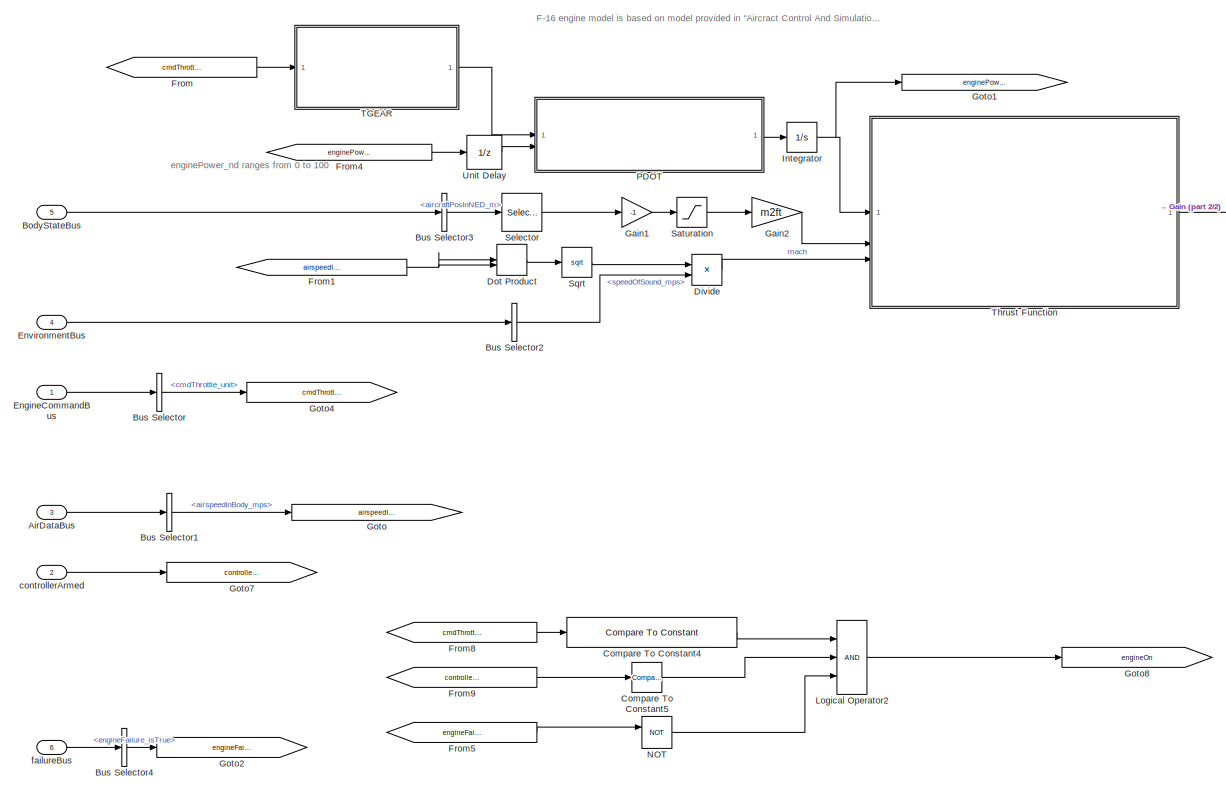
[diagram: root canvas - part 1/2, left side, full height]
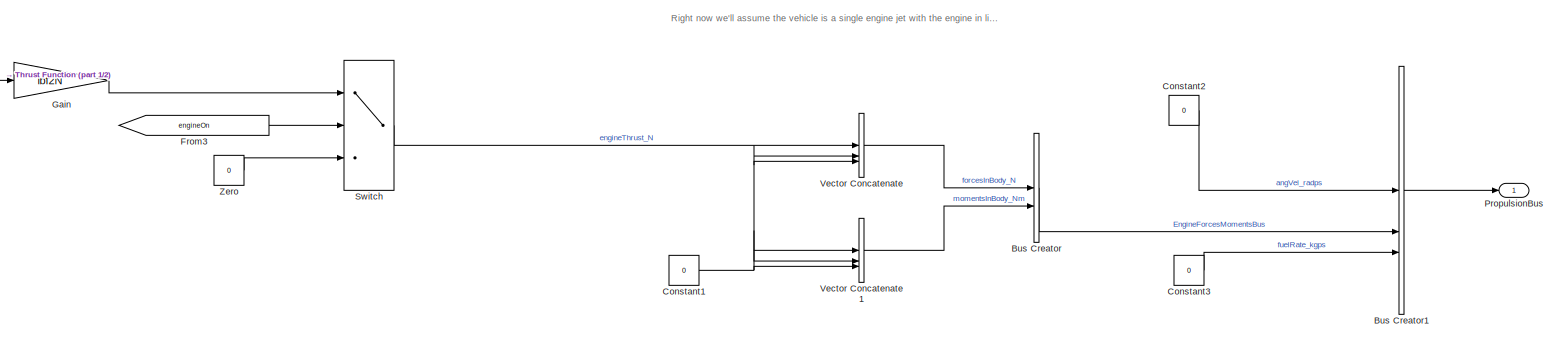
[diagram: root canvas - part 2/2, middle right region]
MODEL slx_affd410aeec6
KIND model
CONFIG AbsTol = auto
CONFIG EnableMultiTasking = off
CONFIG FixedStep = auto
CONFIG MaxStep = auto
CONFIG MinStep = auto
CONFIG RelTol = 1e-3
CONFIG SampleTimeConstraint = Unconstrained
CONFIG SolverName = VariableStepAuto
CONFIG StartTime = 0.0
CONFIG StopTime = 10.0
BLOCK [Inport] AirDataBus
  OutDataTypeStr = Bus: AirDataBus
  Port = 3
BLOCK [Inport] BodyStateBus
  OutDataTypeStr = Bus: BodyStateBus
  Port = 5
BLOCK [BusCreator] Bus Creator
  DisplayOption = bar
  InheritFromInputs = on
  Inputs = 2
  OutDataTypeStr = Bus: ComponentForcesMomentsBus
BLOCK [BusCreator] Bus Creator1
  DisplayOption = bar
  InheritFromInputs = on
  Inputs = 3
  OutDataTypeStr = Bus: PropulsionBus
BLOCK [BusSelector] Bus Selector
  OutputSignals = cmdThrottle_unit
BLOCK [BusSelector] Bus Selector1
  OutputSignals = airspeedInBody_mps
BLOCK [BusSelector] Bus Selector2
  OutputSignals = AirEnvironment.speedOfSound_mps
BLOCK [BusSelector] Bus Selector3
  OutputSignals = aircraftPosInNED_m
BLOCK [BusSelector] Bus Selector4
  OutputSignals = engineFailure_isTrue
BLOCK [Reference] Compare To Constant4  REF=simulink/Logic and Bit
Operations/Compare
To Constant
  SourceBlock = simulink/Logic and Bit\nOperations/Compare\nTo Constant
  SourceType = Compare To Constant
BLOCK [Reference] Compare To Constant5  REF=simulink/Logic and Bit
Operations/Compare
To Constant
  SourceBlock = simulink/Logic and Bit\nOperations/Compare\nTo Constant
  SourceType = Compare To Constant
BLOCK [Constant] Constant1
  SampleTime = stepSize_s
  Value = 0
BLOCK [Constant] Constant2
  SampleTime = stepSize_s
  Value = 0
BLOCK [Constant] Constant3
  SampleTime = stepSize_s
  Value = 0
BLOCK [Product] Divide
  Inputs = */
BLOCK [DotProduct] Dot Product
  OutDataTypeStr = Inherit: Inherit via internal rule
BLOCK [Inport] EngineCommandBus
  OutDataTypeStr = Bus: EngineCommandBus
BLOCK [Inport] EnvironmentBus
  OutDataTypeStr = Bus: EnvironmentBus
  Port = 4
BLOCK [From] From
  GotoTag = cmdThrottle_nd
BLOCK [From] From1
  GotoTag = airspeedInBody_mps
BLOCK [From] From3
  GotoTag = engineOn
BLOCK [From] From4
  GotoTag = enginePower_nd
BLOCK [From] From5
  GotoTag = engineFailure_isTrue
BLOCK [From] From8
  GotoTag = cmdThrottle_nd
BLOCK [From] From9
  GotoTag = controllerArmed
BLOCK [Gain] Gain
  Gain = lbf2N
BLOCK [Gain] Gain1
  Gain = -1
BLOCK [Gain] Gain2
  Gain = m2ft
BLOCK [Goto] Goto
  GotoTag = airspeedInBody_mps
BLOCK [Goto] Goto1
  GotoTag = enginePower_nd
BLOCK [Goto] Goto2
  GotoTag = engineFailure_isTrue
BLOCK [Goto] Goto4
  GotoTag = cmdThrottle_nd
BLOCK [Goto] Goto7
  GotoTag = controllerArmed
BLOCK [Goto] Goto8
  GotoTag = engineOn
BLOCK [Integrator] Integrator
BLOCK [Logic] Logical Operator2
  AllPortsSameDT = off
  Inputs = 3
  OutDataTypeStr = boolean
BLOCK [Logic] NOT
  AllPortsSameDT = off
  IconShape = distinctive
  Operator = NOT
  OutDataTypeStr = boolean
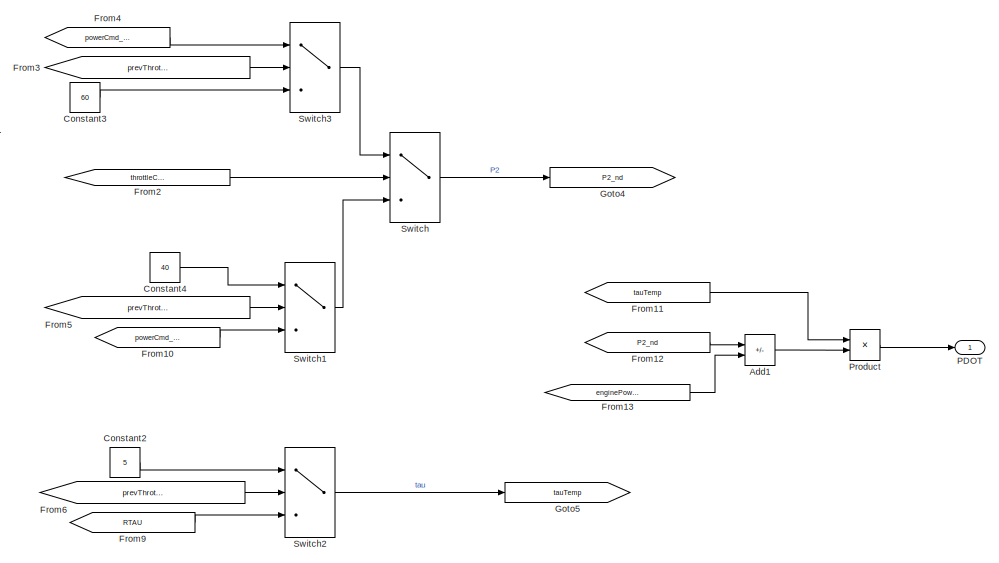
[diagram: PDOT - part 1/2, right side, full height]
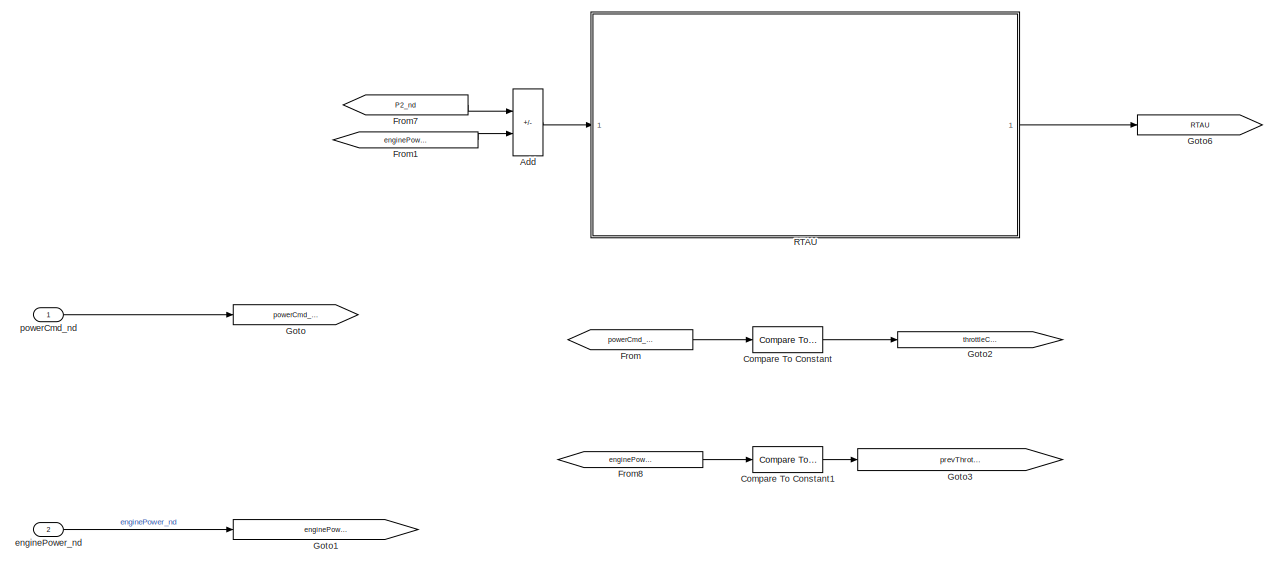
[diagram: PDOT - part 2/2, left side, full height]
BLOCK [SubSystem] PDOT
BLOCK [Sum] PDOT/Add
  IconShape = rectangular
  Inputs = +-
BLOCK [Sum] PDOT/Add1
  IconShape = rectangular
  Inputs = +-
BLOCK [Reference] PDOT/Compare To Constant  REF=simulink/Logic and Bit
Operations/Compare
To Constant
  SourceBlock = simulink/Logic and Bit\nOperations/Compare\nTo Constant
  SourceType = Compare To Constant
BLOCK [Reference] PDOT/Compare To Constant1  REF=simulink/Logic and Bit
Operations/Compare
To Constant
  SourceBlock = simulink/Logic and Bit\nOperations/Compare\nTo Constant
  SourceType = Compare To Constant
BLOCK [Constant] PDOT/Constant2
  Value = 5
BLOCK [Constant] PDOT/Constant3
  Value = 60
BLOCK [Constant] PDOT/Constant4
  Value = 40
BLOCK [From] PDOT/From
  GotoTag = powerCmd_nd
BLOCK [From] PDOT/From1
  GotoTag = enginePower_nd
BLOCK [From] PDOT/From10
  GotoTag = powerCmd_nd
BLOCK [From] PDOT/From11
  GotoTag = tauTemp
BLOCK [From] PDOT/From12
  GotoTag = P2_nd
BLOCK [From] PDOT/From13
  GotoTag = enginePower_nd
BLOCK [From] PDOT/From2
  GotoTag = throttleCmdGEFifty_isTrue
BLOCK [From] PDOT/From3
  GotoTag = prevThrottleCmdGEFifty_isTrue
BLOCK [From] PDOT/From4
  GotoTag = powerCmd_nd
BLOCK [From] PDOT/From5
  GotoTag = prevThrottleCmdGEFifty_isTrue
BLOCK [From] PDOT/From6
  GotoTag = prevThrottleCmdGEFifty_isTrue
BLOCK [From] PDOT/From7
  GotoTag = P2_nd
BLOCK [From] PDOT/From8
  GotoTag = enginePower_nd
BLOCK [From] PDOT/From9
  GotoTag = RTAU
BLOCK [Goto] PDOT/Goto
  GotoTag = powerCmd_nd
BLOCK [Goto] PDOT/Goto1
  GotoTag = enginePower_nd
BLOCK [Goto] PDOT/Goto2
  GotoTag = throttleCmdGEFifty_isTrue
BLOCK [Goto] PDOT/Goto3
  GotoTag = prevThrottleCmdGEFifty_isTrue
BLOCK [Goto] PDOT/Goto4
  GotoTag = P2_nd
BLOCK [Goto] PDOT/Goto5
  GotoTag = tauTemp
BLOCK [Goto] PDOT/Goto6
  GotoTag = RTAU
BLOCK [Outport] PDOT/PDOT
BLOCK [Product] PDOT/Product
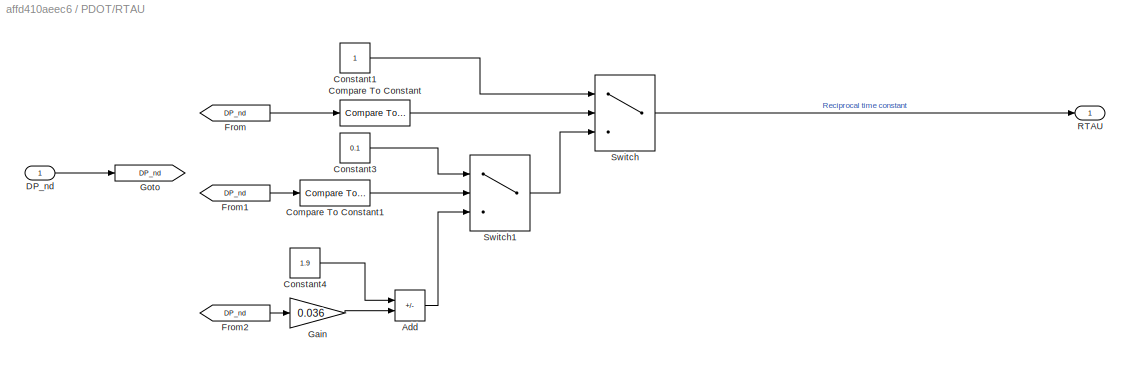
BLOCK [SubSystem] PDOT/RTAU
BLOCK [Sum] PDOT/RTAU/Add
  IconShape = rectangular
  Inputs = +-
BLOCK [Reference] PDOT/RTAU/Compare To Constant  REF=simulink/Logic and Bit
Operations/Compare
To Constant
  SourceBlock = simulink/Logic and Bit\nOperations/Compare\nTo Constant
  SourceType = Compare To Constant
BLOCK [Reference] PDOT/RTAU/Compare To Constant1  REF=simulink/Logic and Bit
Operations/Compare
To Constant
  SourceBlock = simulink/Logic and Bit\nOperations/Compare\nTo Constant
  SourceType = Compare To Constant
BLOCK [Constant] PDOT/RTAU/Constant1
BLOCK [Constant] PDOT/RTAU/Constant3
  Value = 0.1
BLOCK [Constant] PDOT/RTAU/Constant4
  Value = 1.9
BLOCK [Inport] PDOT/RTAU/DP_nd
BLOCK [From] PDOT/RTAU/From
  GotoTag = DP_nd
BLOCK [From] PDOT/RTAU/From1
  GotoTag = DP_nd
BLOCK [From] PDOT/RTAU/From2
  GotoTag = DP_nd
BLOCK [Gain] PDOT/RTAU/Gain
  Gain = 0.036
BLOCK [Goto] PDOT/RTAU/Goto
  GotoTag = DP_nd
BLOCK [Outport] PDOT/RTAU/RTAU
BLOCK [Switch] PDOT/RTAU/Switch
  Criteria = u2 > Threshold
  InputSameDT = off
  SaturateOnIntegerOverflow = off
BLOCK [Switch] PDOT/RTAU/Switch1
  Criteria = u2 > Threshold
  InputSameDT = off
  SaturateOnIntegerOverflow = off
BLOCK [Switch] PDOT/Switch
  Criteria = u2 > Threshold
  InputSameDT = off
  SaturateOnIntegerOverflow = off
BLOCK [Switch] PDOT/Switch1
  Criteria = u2 > Threshold
  InputSameDT = off
  SaturateOnIntegerOverflow = off
BLOCK [Switch] PDOT/Switch2
  Criteria = u2 > Threshold
  InputSameDT = off
  SaturateOnIntegerOverflow = off
BLOCK [Switch] PDOT/Switch3
  Criteria = u2 > Threshold
  InputSameDT = off
  SaturateOnIntegerOverflow = off
BLOCK [Inport] PDOT/enginePower_nd
  Port = 2
BLOCK [Inport] PDOT/powerCmd_nd
BLOCK [Outport] PropulsionBus
  OutDataTypeStr = Bus: PropulsionBus
BLOCK [Saturate] Saturation
  LowerLimit = -1000
  UpperLimit = 850000
BLOCK [Selector] Selector
  IndexOptions = Index vector (dialog)
  Indices = 3
  InputPortWidth = 3
  OutputSizes = 1
BLOCK [Sqrt] Sqrt
BLOCK [Switch] Switch
  Criteria = u2 > Threshold
  InputSameDT = off
  SaturateOnIntegerOverflow = off
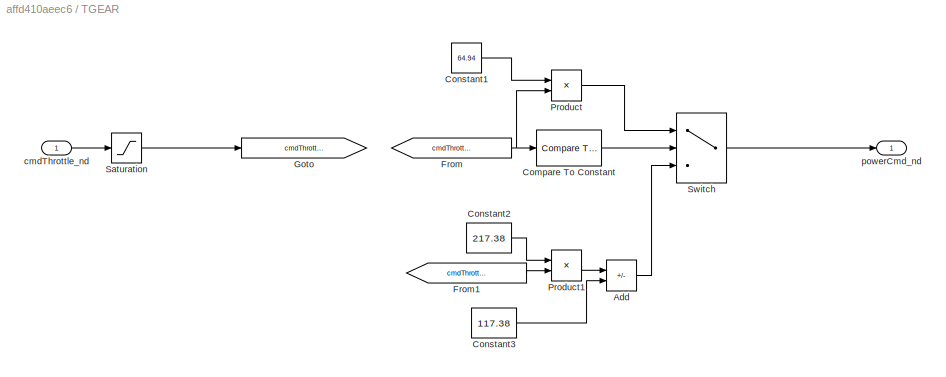
BLOCK [SubSystem] TGEAR
BLOCK [Sum] TGEAR/Add
  IconShape = rectangular
  Inputs = +-
BLOCK [Reference] TGEAR/Compare To Constant  REF=simulink/Logic and Bit
Operations/Compare
To Constant
  SourceBlock = simulink/Logic and Bit\nOperations/Compare\nTo Constant
  SourceType = Compare To Constant
BLOCK [Constant] TGEAR/Constant1
  Value = 64.94
BLOCK [Constant] TGEAR/Constant2
  Value = 217.38
BLOCK [Constant] TGEAR/Constant3
  Value = 117.38
BLOCK [From] TGEAR/From
  GotoTag = cmdThrottle_nd
BLOCK [From] TGEAR/From1
  GotoTag = cmdThrottle_nd
BLOCK [Goto] TGEAR/Goto
  GotoTag = cmdThrottle_nd
BLOCK [Product] TGEAR/Product
BLOCK [Product] TGEAR/Product1
BLOCK [Saturate] TGEAR/Saturation
  LowerLimit = 0
  UpperLimit = 1
BLOCK [Switch] TGEAR/Switch
  Criteria = u2 > Threshold
  InputSameDT = off
  SaturateOnIntegerOverflow = off
BLOCK [Inport] TGEAR/cmdThrottle_nd
BLOCK [Outport] TGEAR/powerCmd_nd
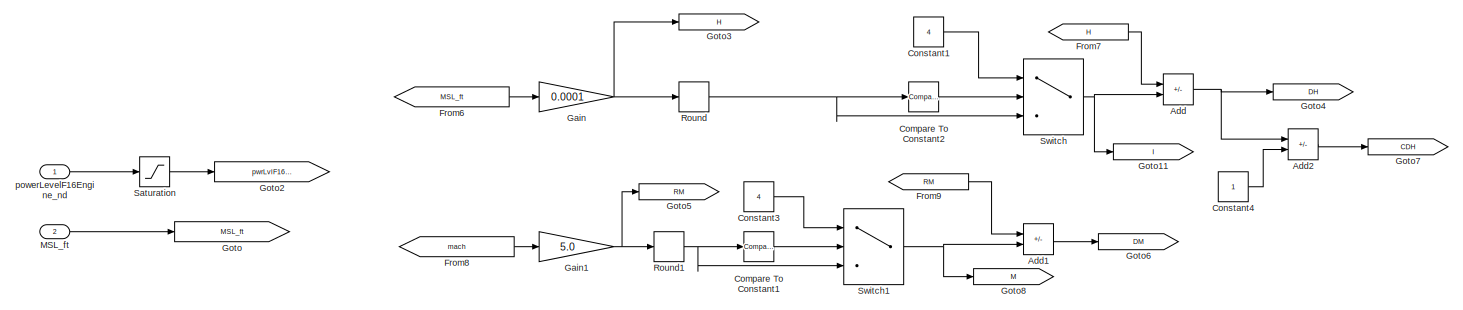
[diagram: Thrust Function - part 1/5, top left region]
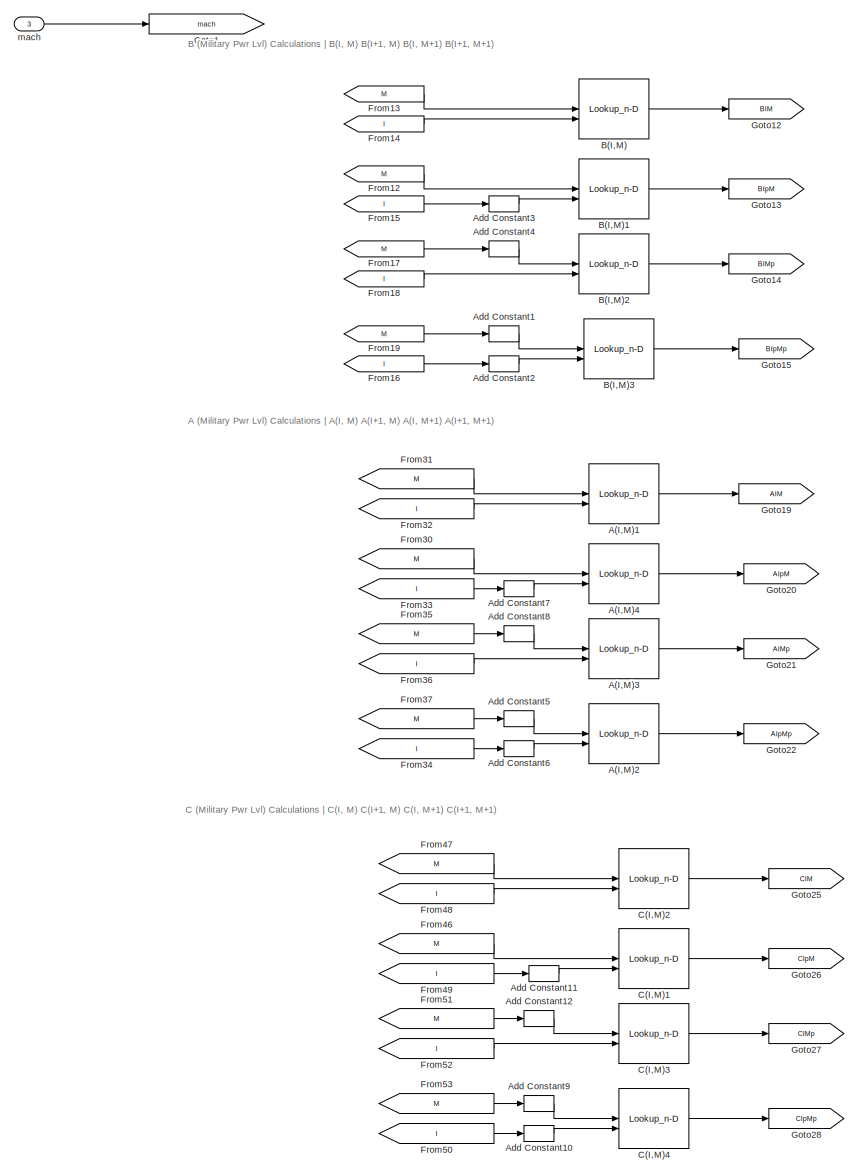
[diagram: Thrust Function - part 2/5, middle left region]
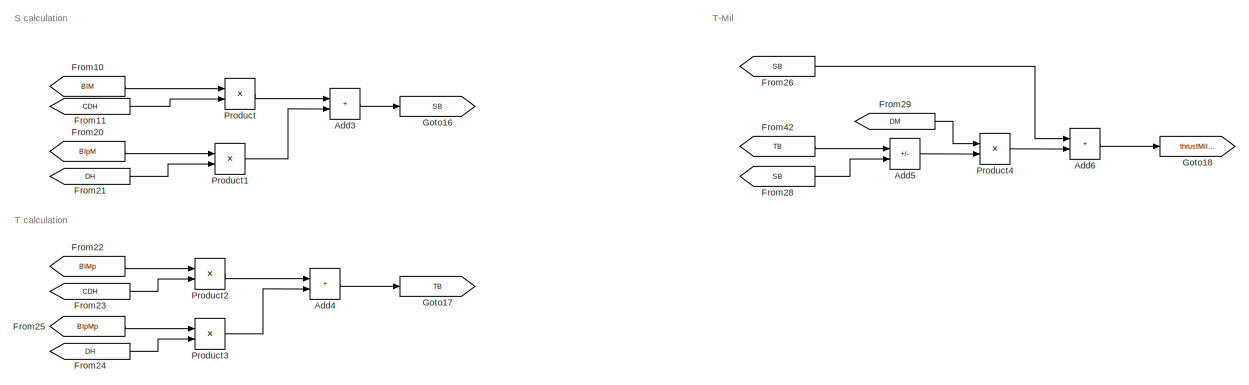
[diagram: Thrust Function - part 3/5, top center region]
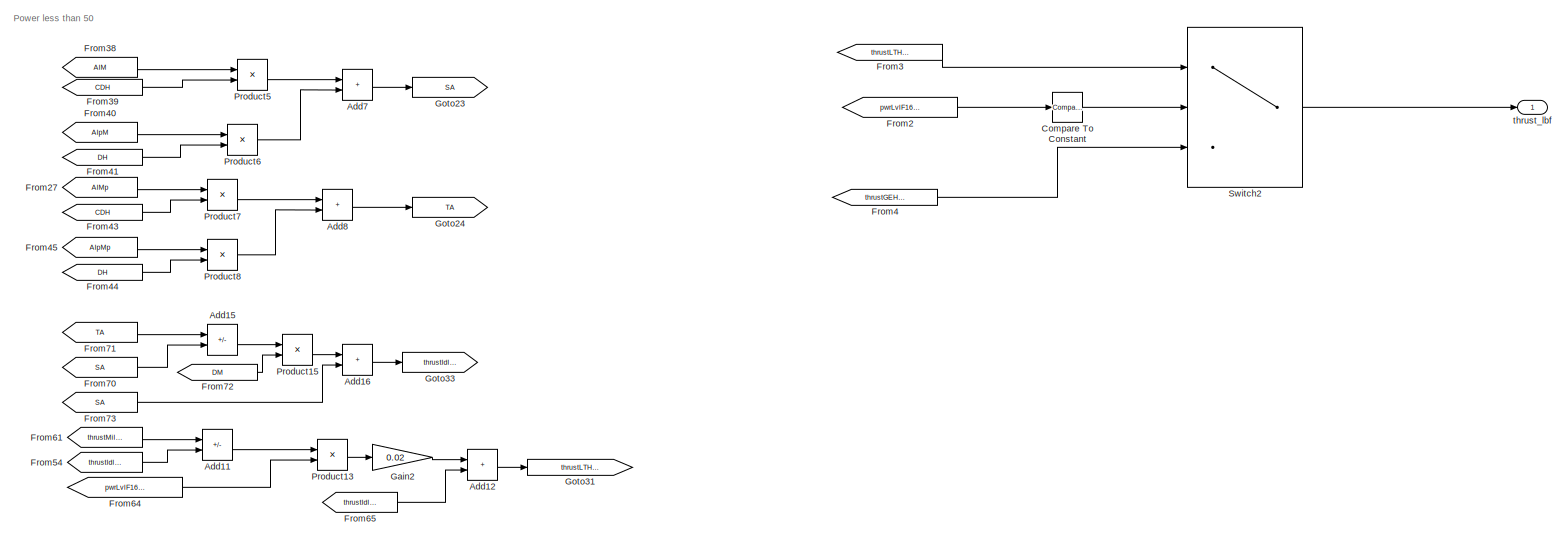
[diagram: Thrust Function - part 4/5, middle right region]
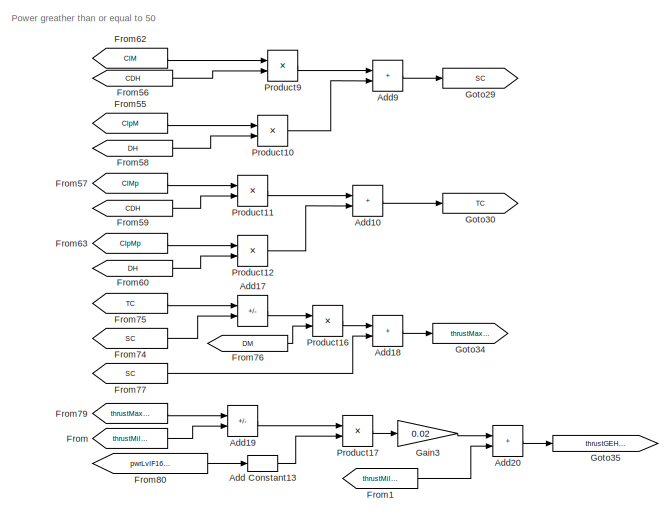
[diagram: Thrust Function - part 5/5, bottom center region]
BLOCK [SubSystem] Thrust Function
BLOCK [Lookup_n-D] Thrust Function/A(I,M)1
  BreakpointsForDimension1 = engineDataF16.machBkpts
  BreakpointsForDimension2 = engineDataF16.altitudeBkpts_ft
  DiagnosticForOutOfRangeInput = Warning
  ExtrapMethod = Clip
  InputPortMap = u0,u1
  InternalRulePriority = Speed
  RndMeth = Simplest
  Table = engineDataF16.thrustIdle_lbf
BLOCK [Lookup_n-D] Thrust Function/A(I,M)2
  BreakpointsForDimension1 = engineDataF16.machBkpts
  BreakpointsForDimension2 = engineDataF16.altitudeBkpts_ft
  DiagnosticForOutOfRangeInput = Warning
  ExtrapMethod = Clip
  InputPortMap = u0,u1
  InternalRulePriority = Speed
  RndMeth = Simplest
  Table = engineDataF16.thrustIdle_lbf
BLOCK [Lookup_n-D] Thrust Function/A(I,M)3
  BreakpointsForDimension1 = engineDataF16.machBkpts
  BreakpointsForDimension2 = engineDataF16.altitudeBkpts_ft
  DiagnosticForOutOfRangeInput = Warning
  ExtrapMethod = Clip
  InputPortMap = u0,u1
  InternalRulePriority = Speed
  RndMeth = Simplest
  Table = engineDataF16.thrustIdle_lbf
BLOCK [Lookup_n-D] Thrust Function/A(I,M)4
  BreakpointsForDimension1 = engineDataF16.machBkpts
  BreakpointsForDimension2 = engineDataF16.altitudeBkpts_ft
  DiagnosticForOutOfRangeInput = Warning
  ExtrapMethod = Clip
  InputPortMap = u0,u1
  InternalRulePriority = Speed
  RndMeth = Simplest
  Table = engineDataF16.thrustIdle_lbf
BLOCK [Sum] Thrust Function/Add
  IconShape = rectangular
  Inputs = +-
BLOCK [Bias] Thrust Function/Add Constant1
  Bias = 1
  SaturateOnIntegerOverflow = off
BLOCK [Bias] Thrust Function/Add Constant10
  Bias = 1
  SaturateOnIntegerOverflow = off
BLOCK [Bias] Thrust Function/Add Constant11
  Bias = 1
  SaturateOnIntegerOverflow = off
BLOCK [Bias] Thrust Function/Add Constant12
  Bias = 1
  SaturateOnIntegerOverflow = off
BLOCK [Bias] Thrust Function/Add Constant13
  Bias = -50
  SaturateOnIntegerOverflow = off
BLOCK [Bias] Thrust Function/Add Constant2
  Bias = 1
  SaturateOnIntegerOverflow = off
BLOCK [Bias] Thrust Function/Add Constant3
  Bias = 1
  SaturateOnIntegerOverflow = off
BLOCK [Bias] Thrust Function/Add Constant4
  Bias = 1
  SaturateOnIntegerOverflow = off
BLOCK [Bias] Thrust Function/Add Constant5
  Bias = 1
  SaturateOnIntegerOverflow = off
BLOCK [Bias] Thrust Function/Add Constant6
  Bias = 1
  SaturateOnIntegerOverflow = off
BLOCK [Bias] Thrust Function/Add Constant7
  Bias = 1
  SaturateOnIntegerOverflow = off
BLOCK [Bias] Thrust Function/Add Constant8
  Bias = 1
  SaturateOnIntegerOverflow = off
BLOCK [Bias] Thrust Function/Add Constant9
  Bias = 1
  SaturateOnIntegerOverflow = off
BLOCK [Sum] Thrust Function/Add1
  IconShape = rectangular
  Inputs = +-
BLOCK [Sum] Thrust Function/Add10
  IconShape = rectangular
BLOCK [Sum] Thrust Function/Add11
  IconShape = rectangular
  Inputs = +-
BLOCK [Sum] Thrust Function/Add12
  IconShape = rectangular
BLOCK [Sum] Thrust Function/Add15
  IconShape = rectangular
  Inputs = +-
BLOCK [Sum] Thrust Function/Add16
  IconShape = rectangular
BLOCK [Sum] Thrust Function/Add17
  IconShape = rectangular
  Inputs = +-
BLOCK [Sum] Thrust Function/Add18
  IconShape = rectangular
BLOCK [Sum] Thrust Function/Add19
  IconShape = rectangular
  Inputs = +-
BLOCK [Sum] Thrust Function/Add2
  IconShape = rectangular
  Inputs = -+
BLOCK [Sum] Thrust Function/Add20
  IconShape = rectangular
BLOCK [Sum] Thrust Function/Add3
  IconShape = rectangular
BLOCK [Sum] Thrust Function/Add4
  IconShape = rectangular
BLOCK [Sum] Thrust Function/Add5
  IconShape = rectangular
  Inputs = +-
BLOCK [Sum] Thrust Function/Add6
  IconShape = rectangular
BLOCK [Sum] Thrust Function/Add7
  IconShape = rectangular
BLOCK [Sum] Thrust Function/Add8
  IconShape = rectangular
BLOCK [Sum] Thrust Function/Add9
  IconShape = rectangular
BLOCK [Lookup_n-D] Thrust Function/B(I,M)
  BreakpointsForDimension1 = engineDataF16.machBkpts
  BreakpointsForDimension2 = engineDataF16.altitudeBkpts_ft
  DiagnosticForOutOfRangeInput = Warning
  ExtrapMethod = Clip
  InputPortMap = u0,u1
  InternalRulePriority = Speed
  RndMeth = Simplest
  Table = engineDataF16.thrustMilitary_lbf
BLOCK [Lookup_n-D] Thrust Function/B(I,M)1
  BreakpointsForDimension1 = engineDataF16.machBkpts
  BreakpointsForDimension2 = engineDataF16.altitudeBkpts_ft
  DiagnosticForOutOfRangeInput = Warning
  ExtrapMethod = Clip
  InputPortMap = u0,u1
  InternalRulePriority = Speed
  RndMeth = Simplest
  Table = engineDataF16.thrustMilitary_lbf
BLOCK [Lookup_n-D] Thrust Function/B(I,M)2
  BreakpointsForDimension1 = engineDataF16.machBkpts
  BreakpointsForDimension2 = engineDataF16.altitudeBkpts_ft
  DiagnosticForOutOfRangeInput = Warning
  ExtrapMethod = Clip
  InputPortMap = u0,u1
  InternalRulePriority = Speed
  RndMeth = Simplest
  Table = engineDataF16.thrustMilitary_lbf
BLOCK [Lookup_n-D] Thrust Function/B(I,M)3
  BreakpointsForDimension1 = engineDataF16.machBkpts
  BreakpointsForDimension2 = engineDataF16.altitudeBkpts_ft
  DiagnosticForOutOfRangeInput = Warning
  ExtrapMethod = Clip
  InputPortMap = u0,u1
  InternalRulePriority = Speed
  RndMeth = Simplest
  Table = engineDataF16.thrustMilitary_lbf
BLOCK [Lookup_n-D] Thrust Function/C(I,M)1
  BreakpointsForDimension1 = engineDataF16.machBkpts
  BreakpointsForDimension2 = engineDataF16.altitudeBkpts_ft
  DiagnosticForOutOfRangeInput = Warning
  ExtrapMethod = Clip
  InputPortMap = u0,u1
  InternalRulePriority = Speed
  RndMeth = Simplest
  Table = engineDataF16.thrustMax_lbf
BLOCK [Lookup_n-D] Thrust Function/C(I,M)2
  BreakpointsForDimension1 = engineDataF16.machBkpts
  BreakpointsForDimension2 = engineDataF16.altitudeBkpts_ft
  DiagnosticForOutOfRangeInput = Warning
  ExtrapMethod = Clip
  InputPortMap = u0,u1
  InternalRulePriority = Speed
  RndMeth = Simplest
  Table = engineDataF16.thrustMax_lbf
BLOCK [Lookup_n-D] Thrust Function/C(I,M)3
  BreakpointsForDimension1 = engineDataF16.machBkpts
  BreakpointsForDimension2 = engineDataF16.altitudeBkpts_ft
  DiagnosticForOutOfRangeInput = Warning
  ExtrapMethod = Clip
  InputPortMap = u0,u1
  InternalRulePriority = Speed
  RndMeth = Simplest
  Table = engineDataF16.thrustMax_lbf
BLOCK [Lookup_n-D] Thrust Function/C(I,M)4
  BreakpointsForDimension1 = engineDataF16.machBkpts
  BreakpointsForDimension2 = engineDataF16.altitudeBkpts_ft
  DiagnosticForOutOfRangeInput = Warning
  ExtrapMethod = Clip
  InputPortMap = u0,u1
  InternalRulePriority = Speed
  RndMeth = Simplest
  Table = engineDataF16.thrustMax_lbf
BLOCK [Reference] Thrust Function/Compare To Constant  REF=simulink/Logic and Bit
Operations/Compare
To Constant
  SourceBlock = simulink/Logic and Bit\nOperations/Compare\nTo Constant
  SourceType = Compare To Constant
BLOCK [Reference] Thrust Function/Compare To Constant1  REF=simulink/Logic and Bit
Operations/Compare
To Constant
  SourceBlock = simulink/Logic and Bit\nOperations/Compare\nTo Constant
  SourceType = Compare To Constant
BLOCK [Reference] Thrust Function/Compare To Constant2  REF=simulink/Logic and Bit
Operations/Compare
To Constant
  SourceBlock = simulink/Logic and Bit\nOperations/Compare\nTo Constant
  SourceType = Compare To Constant
BLOCK [Constant] Thrust Function/Constant1
  Value = 4
BLOCK [Constant] Thrust Function/Constant3
  Value = 4
BLOCK [Constant] Thrust Function/Constant4
BLOCK [From] Thrust Function/From
  GotoTag = thrustMil_lbf
BLOCK [From] Thrust Function/From1
  GotoTag = thrustMil_lbf
BLOCK [From] Thrust Function/From10
  GotoTag = BIM
BLOCK [From] Thrust Function/From11
  GotoTag = CDH
BLOCK [From] Thrust Function/From12
  GotoTag = M
BLOCK [From] Thrust Function/From13
  GotoTag = M
BLOCK [From] Thrust Function/From14
  GotoTag = I
BLOCK [From] Thrust Function/From15
  GotoTag = I
BLOCK [From] Thrust Function/From16
  GotoTag = I
BLOCK [From] Thrust Function/From17
  GotoTag = M
BLOCK [From] Thrust Function/From18
  GotoTag = I
BLOCK [From] Thrust Function/From19
  GotoTag = M
BLOCK [From] Thrust Function/From2
  GotoTag = pwrLvlF16Eng_nd
BLOCK [From] Thrust Function/From20
  GotoTag = BIpM
BLOCK [From] Thrust Function/From21
  GotoTag = DH
BLOCK [From] Thrust Function/From22
  GotoTag = BIMp
BLOCK [From] Thrust Function/From23
  GotoTag = CDH
BLOCK [From] Thrust Function/From24
  GotoTag = DH
BLOCK [From] Thrust Function/From25
  GotoTag = BIpMp
BLOCK [From] Thrust Function/From26
  GotoTag = SB
BLOCK [From] Thrust Function/From27
  GotoTag = AIMp
BLOCK [From] Thrust Function/From28
  GotoTag = SB
BLOCK [From] Thrust Function/From29
  GotoTag = DM
BLOCK [From] Thrust Function/From3
  GotoTag = thrustLTHalf_lbf
BLOCK [From] Thrust Function/From30
  GotoTag = M
BLOCK [From] Thrust Function/From31
  GotoTag = M
BLOCK [From] Thrust Function/From32
  GotoTag = I
BLOCK [From] Thrust Function/From33
  GotoTag = I
BLOCK [From] Thrust Function/From34
  GotoTag = I
BLOCK [From] Thrust Function/From35
  GotoTag = M
BLOCK [From] Thrust Function/From36
  GotoTag = I
BLOCK [From] Thrust Function/From37
  GotoTag = M
BLOCK [From] Thrust Function/From38
  GotoTag = AIM
BLOCK [From] Thrust Function/From39
  GotoTag = CDH
BLOCK [From] Thrust Function/From4
  GotoTag = thrustGEHalf_lbf
BLOCK [From] Thrust Function/From40
  GotoTag = AIpM
BLOCK [From] Thrust Function/From41
  GotoTag = DH
BLOCK [From] Thrust Function/From42
  GotoTag = TB
BLOCK [From] Thrust Function/From43
  GotoTag = CDH
BLOCK [From] Thrust Function/From44
  GotoTag = DH
BLOCK [From] Thrust Function/From45
  GotoTag = AIpMp
BLOCK [From] Thrust Function/From46
  GotoTag = M
BLOCK [From] Thrust Function/From47
  GotoTag = M
BLOCK [From] Thrust Function/From48
  GotoTag = I
BLOCK [From] Thrust Function/From49
  GotoTag = I
BLOCK [From] Thrust Function/From50
  GotoTag = I
BLOCK [From] Thrust Function/From51
  GotoTag = M
BLOCK [From] Thrust Function/From52
  GotoTag = I
BLOCK [From] Thrust Function/From53
  GotoTag = M
BLOCK [From] Thrust Function/From54
  GotoTag = thrustIdle_lbf
BLOCK [From] Thrust Function/From55
  GotoTag = CIpM
BLOCK [From] Thrust Function/From56
  GotoTag = CDH
BLOCK [From] Thrust Function/From57
  GotoTag = CIMp
BLOCK [From] Thrust Function/From58
  GotoTag = DH
BLOCK [From] Thrust Function/From59
  GotoTag = CDH
BLOCK [From] Thrust Function/From6
  GotoTag = MSL_ft
BLOCK [From] Thrust Function/From60
  GotoTag = DH
BLOCK [From] Thrust Function/From61
  GotoTag = thrustMil_lbf
BLOCK [From] Thrust Function/From62
  GotoTag = CIM
BLOCK [From] Thrust Function/From63
  GotoTag = CIpMp
BLOCK [From] Thrust Function/From64
  GotoTag = pwrLvlF16Eng_nd
BLOCK [From] Thrust Function/From65
  GotoTag = thrustIdle_lbf
BLOCK [From] Thrust Function/From7
  GotoTag = H
BLOCK [From] Thrust Function/From70
  GotoTag = SA
BLOCK [From] Thrust Function/From71
  GotoTag = TA
BLOCK [From] Thrust Function/From72
  GotoTag = DM
BLOCK [From] Thrust Function/From73
  GotoTag = SA
BLOCK [From] Thrust Function/From74
  GotoTag = SC
BLOCK [From] Thrust Function/From75
  GotoTag = TC
BLOCK [From] Thrust Function/From76
  GotoTag = DM
BLOCK [From] Thrust Function/From77
  GotoTag = SC
BLOCK [From] Thrust Function/From79
  GotoTag = thrustMax_lbf
BLOCK [From] Thrust Function/From8
  GotoTag = mach
BLOCK [From] Thrust Function/From80
  GotoTag = pwrLvlF16Eng_nd
BLOCK [From] Thrust Function/From9
  GotoTag = RM
BLOCK [Gain] Thrust Function/Gain
  Gain = 0.0001
BLOCK [Gain] Thrust Function/Gain1
  Gain = 5.0
BLOCK [Gain] Thrust Function/Gain2
  Gain = 0.02
BLOCK [Gain] Thrust Function/Gain3
  Gain = 0.02
BLOCK [Goto] Thrust Function/Goto
  GotoTag = MSL_ft
BLOCK [Goto] Thrust Function/Goto1
  GotoTag = mach
BLOCK [Goto] Thrust Function/Goto11
  GotoTag = I
BLOCK [Goto] Thrust Function/Goto12
  GotoTag = BIM
BLOCK [Goto] Thrust Function/Goto13
  GotoTag = BIpM
BLOCK [Goto] Thrust Function/Goto14
  GotoTag = BIMp
BLOCK [Goto] Thrust Function/Goto15
  GotoTag = BIpMp
BLOCK [Goto] Thrust Function/Goto16
  GotoTag = SB
BLOCK [Goto] Thrust Function/Goto17
  GotoTag = TB
BLOCK [Goto] Thrust Function/Goto18
  GotoTag = thrustMil_lbf
BLOCK [Goto] Thrust Function/Goto19
  GotoTag = AIM
BLOCK [Goto] Thrust Function/Goto2
  GotoTag = pwrLvlF16Eng_nd
BLOCK [Goto] Thrust Function/Goto20
  GotoTag = AIpM
BLOCK [Goto] Thrust Function/Goto21
  GotoTag = AIMp
BLOCK [Goto] Thrust Function/Goto22
  GotoTag = AIpMp
BLOCK [Goto] Thrust Function/Goto23
  GotoTag = SA
BLOCK [Goto] Thrust Function/Goto24
  GotoTag = TA
BLOCK [Goto] Thrust Function/Goto25
  GotoTag = CIM
BLOCK [Goto] Thrust Function/Goto26
  GotoTag = CIpM
BLOCK [Goto] Thrust Function/Goto27
  GotoTag = CIMp
BLOCK [Goto] Thrust Function/Goto28
  GotoTag = CIpMp
BLOCK [Goto] Thrust Function/Goto29
  GotoTag = SC
BLOCK [Goto] Thrust Function/Goto3
  GotoTag = H
BLOCK [Goto] Thrust Function/Goto30
  GotoTag = TC
BLOCK [Goto] Thrust Function/Goto31
  GotoTag = thrustLTHalf_lbf
BLOCK [Goto] Thrust Function/Goto33
  GotoTag = thrustIdle_lbf
BLOCK [Goto] Thrust Function/Goto34
  GotoTag = thrustMax_lbf
BLOCK [Goto] Thrust Function/Goto35
  GotoTag = thrustGEHalf_lbf
BLOCK [Goto] Thrust Function/Goto4
  GotoTag = DH
BLOCK [Goto] Thrust Function/Goto5
  GotoTag = RM
BLOCK [Goto] Thrust Function/Goto6
  GotoTag = DM
BLOCK [Goto] Thrust Function/Goto7
  GotoTag = CDH
BLOCK [Goto] Thrust Function/Goto8
  GotoTag = M
BLOCK [Inport] Thrust Function/MSL_ft
  Port = 2
BLOCK [Product] Thrust Function/Product
BLOCK [Product] Thrust Function/Product1
BLOCK [Product] Thrust Function/Product10
BLOCK [Product] Thrust Function/Product11
BLOCK [Product] Thrust Function/Product12
BLOCK [Product] Thrust Function/Product13
BLOCK [Product] Thrust Function/Product15
BLOCK [Product] Thrust Function/Product16
BLOCK [Product] Thrust Function/Product17
BLOCK [Product] Thrust Function/Product2
BLOCK [Product] Thrust Function/Product3
BLOCK [Product] Thrust Function/Product4
BLOCK [Product] Thrust Function/Product5
BLOCK [Product] Thrust Function/Product6
BLOCK [Product] Thrust Function/Product7
BLOCK [Product] Thrust Function/Product8
BLOCK [Product] Thrust Function/Product9
BLOCK [Rounding] Thrust Function/Round
  Operator = fix
BLOCK [Rounding] Thrust Function/Round1
  Operator = fix
BLOCK [Saturate] Thrust Function/Saturation
  LowerLimit = 0
  UpperLimit = 100
BLOCK [Switch] Thrust Function/Switch
  Criteria = u2 > Threshold
  InputSameDT = off
  SaturateOnIntegerOverflow = off
BLOCK [Switch] Thrust Function/Switch1
  Criteria = u2 > Threshold
  InputSameDT = off
  SaturateOnIntegerOverflow = off
BLOCK [Switch] Thrust Function/Switch2
  Criteria = u2 > Threshold
  InputSameDT = off
  SaturateOnIntegerOverflow = off
BLOCK [Inport] Thrust Function/mach
  Port = 3
BLOCK [Inport] Thrust Function/powerLevelF16Engine_nd
  OutDataTypeStr = double
BLOCK [Outport] Thrust Function/thrust_lbf
BLOCK [UnitDelay] Unit Delay
  HasFrameUpgradeWarning = on
  SampleTime = -1
BLOCK [Concatenate] Vector Concatenate
  NumInputs = 3
BLOCK [Concatenate] Vector Concatenate1
  NumInputs = 3
BLOCK [Constant] Zero
  OutDataTypeStr = Inherit: Inherit via back propagation
  SampleTime = stepSize_s
  Value = 0
BLOCK [Inport] controllerArmed
  Port = 2
BLOCK [Inport] failureBus
  OutDataTypeStr = Bus:FailureBus
  Port = 6
ANNOTATION (root): F-16 engine model is based on model provided in "Aircract Control And Simulation, Third Edition, Stevens, Lewis, Johnson"
ANNOTATION (root): Right now we'll assume the vehicle is a single engine jet with the engine in line with the vehicle caried x-axis . TODO: If needed add F16 engine angular momentum which is constant to 160 slug-ft^2/s in reference.
ANNOTATION (root): enginePower_nd ranges from 0 to 100
ANNOTATION Thrust Function: Power less than 50
ANNOTATION Thrust Function: A (Military Pwr Lvl) Calculations | A(I, M) A(I+1, M) A(I, M+1) A(I+1, M+1)
ANNOTATION Thrust Function: B (Military Pwr Lvl) Calculations | B(I, M) B(I+1, M) B(I, M+1) B(I+1, M+1)
ANNOTATION Thrust Function: C (Military Pwr Lvl) Calculations | C(I, M) C(I+1, M) C(I, M+1) C(I+1, M+1)
ANNOTATION Thrust Function: Power greather than or equal to 50
ANNOTATION Thrust Function: S calculation
ANNOTATION Thrust Function: T calculation
ANNOTATION Thrust Function: T-Mil
LINE AirDataBus:1 -> Bus Selector1:1
LINE BodyStateBus:1 -> Bus Selector3:1
LINE Bus Creator1:1 -> PropulsionBus:1
LINE Bus Creator:1 -> Bus Creator1:2
LINE Bus Selector1:1 -> Goto:1
LINE Bus Selector2:1 -> Divide:2
LINE Bus Selector3:1 -> Selector:1
LINE Bus Selector4:1 -> Goto2:1
LINE Bus Selector:1 -> Goto4:1
LINE Compare To Constant4:1 -> Logical Operator2:1
LINE Compare To Constant5:1 -> Logical Operator2:2
NET Constant1:1 -> Vector Concatenate1:1, Vector Concatenate1:2, Vector Concatenate1:3, Vector Concatenate:2, Vector Concatenate:3
LINE Constant2:1 -> Bus Creator1:1
LINE Constant3:1 -> Bus Creator1:3
LINE Divide:1 -> Thrust Function:3
LINE Dot Product:1 -> Sqrt:1
LINE EngineCommandBus:1 -> Bus Selector:1
LINE EnvironmentBus:1 -> Bus Selector2:1
NET From1:1 -> Dot Product:1, Dot Product:2
LINE From3:1 -> Switch:2
LINE From4:1 -> Unit Delay:1
LINE From5:1 -> NOT:1
LINE From8:1 -> Compare To Constant4:1
LINE From9:1 -> Compare To Constant5:1
LINE From:1 -> TGEAR:1
LINE Gain1:1 -> Saturation:1
LINE Gain2:1 -> Thrust Function:2
LINE Gain:1 -> Switch:1
NET Integrator:1 -> Goto1:1, Thrust Function:1
LINE Logical Operator2:1 -> Goto8:1
LINE NOT:1 -> Logical Operator2:3
LINE PDOT/Add1:1 -> PDOT/Product:2
LINE PDOT/Add:1 -> PDOT/RTAU:1
LINE PDOT/Compare To Constant1:1 -> PDOT/Goto3:1
LINE PDOT/Compare To Constant:1 -> PDOT/Goto2:1
LINE PDOT/Constant2:1 -> PDOT/Switch2:1
LINE PDOT/Constant3:1 -> PDOT/Switch3:3
LINE PDOT/Constant4:1 -> PDOT/Switch1:1
LINE PDOT/From10:1 -> PDOT/Switch1:3
LINE PDOT/From11:1 -> PDOT/Product:1
LINE PDOT/From12:1 -> PDOT/Add1:1
LINE PDOT/From13:1 -> PDOT/Add1:2
LINE PDOT/From1:1 -> PDOT/Add:2
LINE PDOT/From2:1 -> PDOT/Switch:2
LINE PDOT/From3:1 -> PDOT/Switch3:2
LINE PDOT/From4:1 -> PDOT/Switch3:1
LINE PDOT/From5:1 -> PDOT/Switch1:2
LINE PDOT/From6:1 -> PDOT/Switch2:2
LINE PDOT/From7:1 -> PDOT/Add:1
LINE PDOT/From8:1 -> PDOT/Compare To Constant1:1
LINE PDOT/From9:1 -> PDOT/Switch2:3
LINE PDOT/From:1 -> PDOT/Compare To Constant:1
LINE PDOT/Product:1 -> PDOT/PDOT:1
LINE PDOT/RTAU/Add:1 -> PDOT/RTAU/Switch1:3
LINE PDOT/RTAU/Compare To Constant1:1 -> PDOT/RTAU/Switch1:2
LINE PDOT/RTAU/Compare To Constant:1 -> PDOT/RTAU/Switch:2
LINE PDOT/RTAU/Constant1:1 -> PDOT/RTAU/Switch:1
LINE PDOT/RTAU/Constant3:1 -> PDOT/RTAU/Switch1:1
LINE PDOT/RTAU/Constant4:1 -> PDOT/RTAU/Add:1
LINE PDOT/RTAU/DP_nd:1 -> PDOT/RTAU/Goto:1
LINE PDOT/RTAU/From1:1 -> PDOT/RTAU/Compare To Constant1:1
LINE PDOT/RTAU/From2:1 -> PDOT/RTAU/Gain:1
LINE PDOT/RTAU/From:1 -> PDOT/RTAU/Compare To Constant:1
LINE PDOT/RTAU/Gain:1 -> PDOT/RTAU/Add:2
LINE PDOT/RTAU/Switch1:1 -> PDOT/RTAU/Switch:3
LINE PDOT/RTAU/Switch:1 -> PDOT/RTAU/RTAU:1
LINE PDOT/RTAU:1 -> PDOT/Goto6:1
LINE PDOT/Switch1:1 -> PDOT/Switch:3
LINE PDOT/Switch2:1 -> PDOT/Goto5:1
LINE PDOT/Switch3:1 -> PDOT/Switch:1
LINE PDOT/Switch:1 -> PDOT/Goto4:1
LINE PDOT/enginePower_nd:1 -> PDOT/Goto1:1
LINE PDOT/powerCmd_nd:1 -> PDOT/Goto:1
LINE PDOT:1 -> Integrator:1
LINE Saturation:1 -> Gain2:1
LINE Selector:1 -> Gain1:1
LINE Sqrt:1 -> Divide:1
LINE Switch:1 -> Vector Concatenate:1
LINE TGEAR/Add:1 -> TGEAR/Switch:3
LINE TGEAR/Compare To Constant:1 -> TGEAR/Switch:2
LINE TGEAR/Constant1:1 -> TGEAR/Product:1
LINE TGEAR/Constant2:1 -> TGEAR/Product1:1
LINE TGEAR/Constant3:1 -> TGEAR/Add:2
LINE TGEAR/From1:1 -> TGEAR/Product1:2
NET TGEAR/From:1 -> TGEAR/Compare To Constant:1, TGEAR/Product:2
LINE TGEAR/Product1:1 -> TGEAR/Add:1
LINE TGEAR/Product:1 -> TGEAR/Switch:1
LINE TGEAR/Saturation:1 -> TGEAR/Goto:1
LINE TGEAR/Switch:1 -> TGEAR/powerCmd_nd:1
LINE TGEAR/cmdThrottle_nd:1 -> TGEAR/Saturation:1
LINE TGEAR:1 -> PDOT:1
LINE Thrust Function/A(I,M)1:1 -> Thrust Function/Goto19:1
LINE Thrust Function/A(I,M)2:1 -> Thrust Function/Goto22:1
LINE Thrust Function/A(I,M)3:1 -> Thrust Function/Goto21:1
LINE Thrust Function/A(I,M)4:1 -> Thrust Function/Goto20:1
LINE Thrust Function/Add Constant10:1 -> Thrust Function/C(I,M)4:2
LINE Thrust Function/Add Constant11:1 -> Thrust Function/C(I,M)1:2
LINE Thrust Function/Add Constant12:1 -> Thrust Function/C(I,M)3:1
LINE Thrust Function/Add Constant13:1 -> Thrust Function/Product17:2
LINE Thrust Function/Add Constant1:1 -> Thrust Function/B(I,M)3:1
LINE Thrust Function/Add Constant2:1 -> Thrust Function/B(I,M)3:2
LINE Thrust Function/Add Constant3:1 -> Thrust Function/B(I,M)1:2
LINE Thrust Function/Add Constant4:1 -> Thrust Function/B(I,M)2:1
LINE Thrust Function/Add Constant5:1 -> Thrust Function/A(I,M)2:1
LINE Thrust Function/Add Constant6:1 -> Thrust Function/A(I,M)2:2
LINE Thrust Function/Add Constant7:1 -> Thrust Function/A(I,M)4:2
LINE Thrust Function/Add Constant8:1 -> Thrust Function/A(I,M)3:1
LINE Thrust Function/Add Constant9:1 -> Thrust Function/C(I,M)4:1
LINE Thrust Function/Add10:1 -> Thrust Function/Goto30:1
LINE Thrust Function/Add11:1 -> Thrust Function/Product13:1
LINE Thrust Function/Add12:1 -> Thrust Function/Goto31:1
LINE Thrust Function/Add15:1 -> Thrust Function/Product15:1
LINE Thrust Function/Add16:1 -> Thrust Function/Goto33:1
LINE Thrust Function/Add17:1 -> Thrust Function/Product16:1
LINE Thrust Function/Add18:1 -> Thrust Function/Goto34:1
LINE Thrust Function/Add19:1 -> Thrust Function/Product17:1
LINE Thrust Function/Add1:1 -> Thrust Function/Goto6:1
LINE Thrust Function/Add20:1 -> Thrust Function/Goto35:1
LINE Thrust Function/Add2:1 -> Thrust Function/Goto7:1
LINE Thrust Function/Add3:1 -> Thrust Function/Goto16:1
LINE Thrust Function/Add4:1 -> Thrust Function/Goto17:1
LINE Thrust Function/Add5:1 -> Thrust Function/Product4:2
LINE Thrust Function/Add6:1 -> Thrust Function/Goto18:1
LINE Thrust Function/Add7:1 -> Thrust Function/Goto23:1
LINE Thrust Function/Add8:1 -> Thrust Function/Goto24:1
LINE Thrust Function/Add9:1 -> Thrust Function/Goto29:1
NET Thrust Function/Add:1 -> Thrust Function/Add2:1, Thrust Function/Goto4:1
LINE Thrust Function/B(I,M)1:1 -> Thrust Function/Goto13:1
LINE Thrust Function/B(I,M)2:1 -> Thrust Function/Goto14:1
LINE Thrust Function/B(I,M)3:1 -> Thrust Function/Goto15:1
LINE Thrust Function/B(I,M):1 -> Thrust Function/Goto12:1
LINE Thrust Function/C(I,M)1:1 -> Thrust Function/Goto26:1
LINE Thrust Function/C(I,M)2:1 -> Thrust Function/Goto25:1
LINE Thrust Function/C(I,M)3:1 -> Thrust Function/Goto27:1
LINE Thrust Function/C(I,M)4:1 -> Thrust Function/Goto28:1
LINE Thrust Function/Compare To Constant1:1 -> Thrust Function/Switch1:2
LINE Thrust Function/Compare To Constant2:1 -> Thrust Function/Switch:2
LINE Thrust Function/Compare To Constant:1 -> Thrust Function/Switch2:2
LINE Thrust Function/Constant1:1 -> Thrust Function/Switch:1
LINE Thrust Function/Constant3:1 -> Thrust Function/Switch1:1
LINE Thrust Function/Constant4:1 -> Thrust Function/Add2:2
LINE Thrust Function/From10:1 -> Thrust Function/Product:1
LINE Thrust Function/From11:1 -> Thrust Function/Product:2
LINE Thrust Function/From12:1 -> Thrust Function/B(I,M)1:1
LINE Thrust Function/From13:1 -> Thrust Function/B(I,M):1
LINE Thrust Function/From14:1 -> Thrust Function/B(I,M):2
LINE Thrust Function/From15:1 -> Thrust Function/Add Constant3:1
LINE Thrust Function/From16:1 -> Thrust Function/Add Constant2:1
LINE Thrust Function/From17:1 -> Thrust Function/Add Constant4:1
LINE Thrust Function/From18:1 -> Thrust Function/B(I,M)2:2
LINE Thrust Function/From19:1 -> Thrust Function/Add Constant1:1
LINE Thrust Function/From1:1 -> Thrust Function/Add20:2
LINE Thrust Function/From20:1 -> Thrust Function/Product1:1
LINE Thrust Function/From21:1 -> Thrust Function/Product1:2
LINE Thrust Function/From22:1 -> Thrust Function/Product2:1
LINE Thrust Function/From23:1 -> Thrust Function/Product2:2
LINE Thrust Function/From24:1 -> Thrust Function/Product3:2
LINE Thrust Function/From25:1 -> Thrust Function/Product3:1
LINE Thrust Function/From26:1 -> Thrust Function/Add6:1
LINE Thrust Function/From27:1 -> Thrust Function/Product7:1
LINE Thrust Function/From28:1 -> Thrust Function/Add5:2
LINE Thrust Function/From29:1 -> Thrust Function/Product4:1
LINE Thrust Function/From2:1 -> Thrust Function/Compare To Constant:1
LINE Thrust Function/From30:1 -> Thrust Function/A(I,M)4:1
LINE Thrust Function/From31:1 -> Thrust Function/A(I,M)1:1
LINE Thrust Function/From32:1 -> Thrust Function/A(I,M)1:2
LINE Thrust Function/From33:1 -> Thrust Function/Add Constant7:1
LINE Thrust Function/From34:1 -> Thrust Function/Add Constant6:1
LINE Thrust Function/From35:1 -> Thrust Function/Add Constant8:1
LINE Thrust Function/From36:1 -> Thrust Function/A(I,M)3:2
LINE Thrust Function/From37:1 -> Thrust Function/Add Constant5:1
LINE Thrust Function/From38:1 -> Thrust Function/Product5:1
LINE Thrust Function/From39:1 -> Thrust Function/Product5:2
LINE Thrust Function/From3:1 -> Thrust Function/Switch2:1
LINE Thrust Function/From40:1 -> Thrust Function/Product6:1
LINE Thrust Function/From41:1 -> Thrust Function/Product6:2
LINE Thrust Function/From42:1 -> Thrust Function/Add5:1
LINE Thrust Function/From43:1 -> Thrust Function/Product7:2
LINE Thrust Function/From44:1 -> Thrust Function/Product8:2
LINE Thrust Function/From45:1 -> Thrust Function/Product8:1
LINE Thrust Function/From46:1 -> Thrust Function/C(I,M)1:1
LINE Thrust Function/From47:1 -> Thrust Function/C(I,M)2:1
LINE Thrust Function/From48:1 -> Thrust Function/C(I,M)2:2
LINE Thrust Function/From49:1 -> Thrust Function/Add Constant11:1
LINE Thrust Function/From4:1 -> Thrust Function/Switch2:3
LINE Thrust Function/From50:1 -> Thrust Function/Add Constant10:1
LINE Thrust Function/From51:1 -> Thrust Function/Add Constant12:1
LINE Thrust Function/From52:1 -> Thrust Function/C(I,M)3:2
LINE Thrust Function/From53:1 -> Thrust Function/Add Constant9:1
LINE Thrust Function/From54:1 -> Thrust Function/Add11:2
LINE Thrust Function/From55:1 -> Thrust Function/Product10:1
LINE Thrust Function/From56:1 -> Thrust Function/Product9:2
LINE Thrust Function/From57:1 -> Thrust Function/Product11:1
LINE Thrust Function/From58:1 -> Thrust Function/Product10:2
LINE Thrust Function/From59:1 -> Thrust Function/Product11:2
LINE Thrust Function/From60:1 -> Thrust Function/Product12:2
LINE Thrust Function/From61:1 -> Thrust Function/Add11:1
LINE Thrust Function/From62:1 -> Thrust Function/Product9:1
LINE Thrust Function/From63:1 -> Thrust Function/Product12:1
LINE Thrust Function/From64:1 -> Thrust Function/Product13:2
LINE Thrust Function/From65:1 -> Thrust Function/Add12:2
LINE Thrust Function/From6:1 -> Thrust Function/Gain:1
LINE Thrust Function/From70:1 -> Thrust Function/Add15:2
LINE Thrust Function/From71:1 -> Thrust Function/Add15:1
LINE Thrust Function/From72:1 -> Thrust Function/Product15:2
LINE Thrust Function/From73:1 -> Thrust Function/Add16:2
LINE Thrust Function/From74:1 -> Thrust Function/Add17:2
LINE Thrust Function/From75:1 -> Thrust Function/Add17:1
LINE Thrust Function/From76:1 -> Thrust Function/Product16:2
LINE Thrust Function/From77:1 -> Thrust Function/Add18:2
LINE Thrust Function/From79:1 -> Thrust Function/Add19:1
LINE Thrust Function/From7:1 -> Thrust Function/Add:1
LINE Thrust Function/From80:1 -> Thrust Function/Add Constant13:1
LINE Thrust Function/From8:1 -> Thrust Function/Gain1:1
LINE Thrust Function/From9:1 -> Thrust Function/Add1:1
LINE Thrust Function/From:1 -> Thrust Function/Add19:2
NET Thrust Function/Gain1:1 -> Thrust Function/Goto5:1, Thrust Function/Round1:1
LINE Thrust Function/Gain2:1 -> Thrust Function/Add12:1
LINE Thrust Function/Gain3:1 -> Thrust Function/Add20:1
NET Thrust Function/Gain:1 -> Thrust Function/Goto3:1, Thrust Function/Round:1
LINE Thrust Function/MSL_ft:1 -> Thrust Function/Goto:1
LINE Thrust Function/Product10:1 -> Thrust Function/Add9:2
LINE Thrust Function/Product11:1 -> Thrust Function/Add10:1
LINE Thrust Function/Product12:1 -> Thrust Function/Add10:2
LINE Thrust Function/Product13:1 -> Thrust Function/Gain2:1
LINE Thrust Function/Product15:1 -> Thrust Function/Add16:1
LINE Thrust Function/Product16:1 -> Thrust Function/Add18:1
LINE Thrust Function/Product17:1 -> Thrust Function/Gain3:1
LINE Thrust Function/Product1:1 -> Thrust Function/Add3:2
LINE Thrust Function/Product2:1 -> Thrust Function/Add4:1
LINE Thrust Function/Product3:1 -> Thrust Function/Add4:2
LINE Thrust Function/Product4:1 -> Thrust Function/Add6:2
LINE Thrust Function/Product5:1 -> Thrust Function/Add7:1
LINE Thrust Function/Product6:1 -> Thrust Function/Add7:2
LINE Thrust Function/Product7:1 -> Thrust Function/Add8:1
LINE Thrust Function/Product8:1 -> Thrust Function/Add8:2
LINE Thrust Function/Product9:1 -> Thrust Function/Add9:1
LINE Thrust Function/Product:1 -> Thrust Function/Add3:1
NET Thrust Function/Round1:1 -> Thrust Function/Compare To Constant1:1, Thrust Function/Switch1:3
NET Thrust Function/Round:1 -> Thrust Function/Compare To Constant2:1, Thrust Function/Switch:3
LINE Thrust Function/Saturation:1 -> Thrust Function/Goto2:1
NET Thrust Function/Switch1:1 -> Thrust Function/Add1:2, Thrust Function/Goto8:1
LINE Thrust Function/Switch2:1 -> Thrust Function/thrust_lbf:1
NET Thrust Function/Switch:1 -> Thrust Function/Add:2, Thrust Function/Goto11:1
LINE Thrust Function/mach:1 -> Thrust Function/Goto1:1
LINE Thrust Function/powerLevelF16Engine_nd:1 -> Thrust Function/Saturation:1
LINE Thrust Function:1 -> Gain:1
LINE Unit Delay:1 -> PDOT:2
LINE Vector Concatenate1:1 -> Bus Creator:2
LINE Vector Concatenate:1 -> Bus Creator:1
LINE Zero:1 -> Switch:3
LINE controllerArmed:1 -> Goto7:1
LINE failureBus:1 -> Bus Selector4:1
note: NET lines group one-source signal fan-out (src -> all destinations, sorted); 1:1 wires keep LINE
